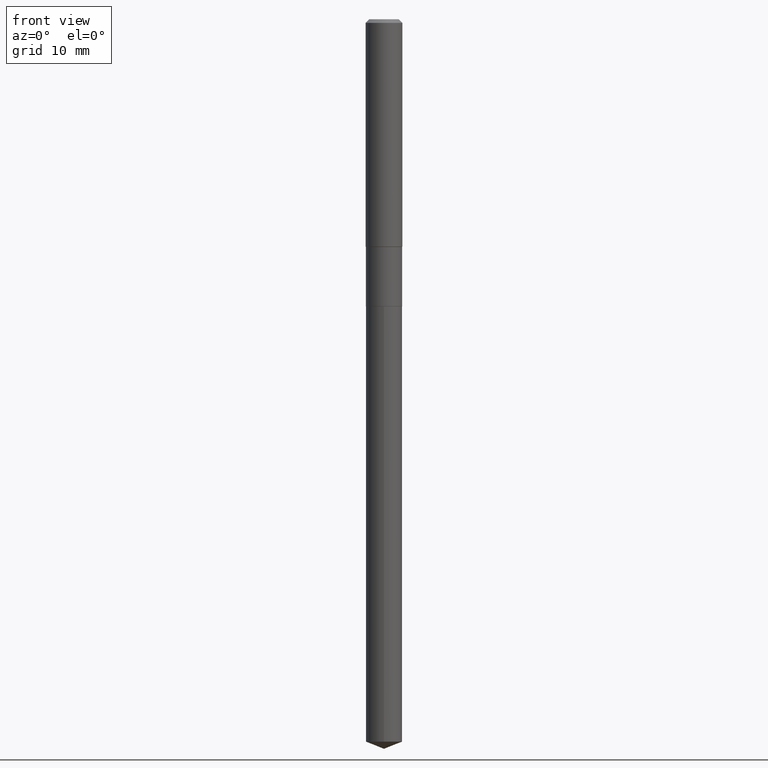
[diagram: clean part render]
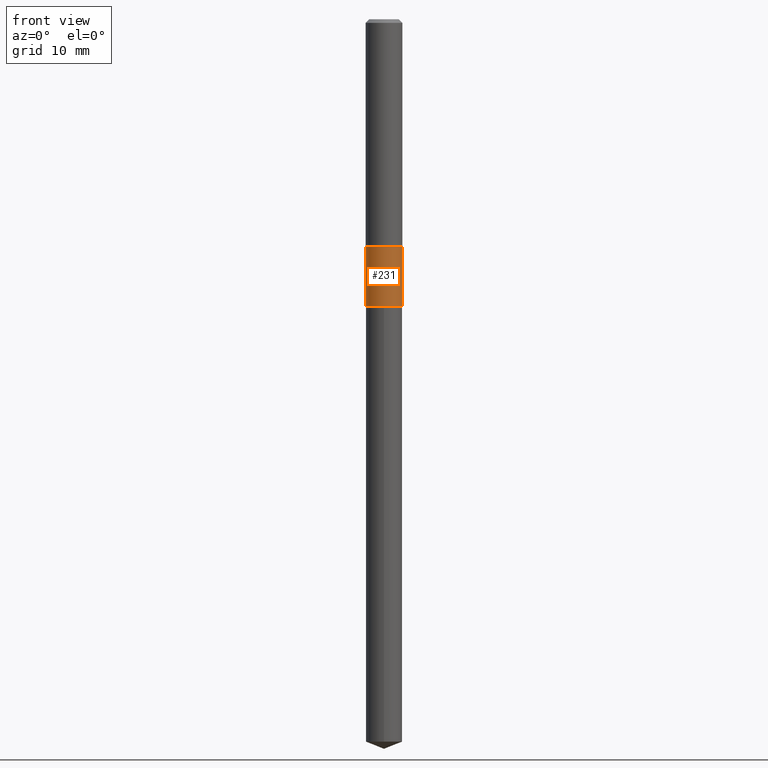
[diagram: same view with one face highlighted and labeled with its STEP entity id]
A machine part, front view. The second image highlights one B-rep face of the part: STEP entity #231.
In plain terms, the highlighted cylindrical surface (edge-blend (fillet) strip) has radius 2.9502 mm, axis along (-0, 0, 1).
Its self-contained STEP definition (entity closure, byte-faithful):
#10 = VERTEX_POINT ( 'NONE', #484 ) ;
#30 = CIRCLE ( 'NONE', #79, 0.1161500000000000032 ) ;
#31 = VECTOR ( 'NONE', #264, 39.37007874015748143 ) ;
#37 = EDGE_LOOP ( 'NONE', ( #224, #237, #421, #240 ) ) ;
#55 = CARTESIAN_POINT ( 'NONE',  ( 4.509444478605390880E-29, -6.438291588826759175E-15, -1.843999999999999417 ) ) ;
#79 = AXIS2_PLACEMENT_3D ( 'NONE', #55, #271, #93 ) ;
#93 = DIRECTION ( 'NONE',  ( 1.000000000000000000, -6.982962677686265922E-15, 0.000000000000000000 ) ) ;
#116 = LINE ( 'NONE', #152, #31 ) ;
#134 = DIRECTION ( 'NONE',  ( -2.445468806185136877E-29, 3.491481338843145188E-15, 1.000000000000000000 ) ) ;
#141 = DIRECTION ( 'NONE',  ( 1.000000000000000000, -6.982962677686269866E-15, 0.000000000000000000 ) ) ;
#146 = EDGE_CURVE ( 'NONE', #350, #10, #30, .T. ) ;
#152 = CARTESIAN_POINT ( 'NONE',  ( 0.1161499999999999755, -8.110711150132597459E-16, 5.663679325086977697E-30 ) ) ;
#164 = VERTEX_POINT ( 'NONE', #238 ) ;
#176 = CYLINDRICAL_SURFACE ( 'NONE', #328, 0.1161499999999999755 ) ;
#193 = EDGE_CURVE ( 'NONE', #350, #164, #309, .T. ) ;
#224 = ORIENTED_EDGE ( 'NONE', *, *, #193, .F. ) ;
#231 = ADVANCED_FACE ( 'NONE', ( #253 ), #176, .T. ) ;
#233 = VERTEX_POINT ( 'NONE', #323 ) ;
#237 = ORIENTED_EDGE ( 'NONE', *, *, #146, .T. ) ;
#238 = CARTESIAN_POINT ( 'NONE',  ( -0.1161499999999999477, -4.944726672986823807E-15, -1.461199999999999166 ) ) ;
#240 = ORIENTED_EDGE ( 'NONE', *, *, #316, .F. ) ;
#253 = FACE_OUTER_BOUND ( 'NONE', #37, .T. ) ;
#254 = DIRECTION ( 'NONE',  ( -2.445468806185136597E-29, 3.491481338843145583E-15, 1.000000000000000000 ) ) ;
#264 = DIRECTION ( 'NONE',  ( -2.445468806185136877E-29, 3.491481338843145188E-15, 1.000000000000000000 ) ) ;
#271 = DIRECTION ( 'NONE',  ( -2.445468806185136597E-29, 3.491481338843145583E-15, 1.000000000000000000 ) ) ;
#290 = CARTESIAN_POINT ( 'NONE',  ( 0.000000000000000000, 0.000000000000000000, 0.000000000000000000 ) ) ;
#291 = CARTESIAN_POINT ( 'NONE',  ( -0.1161500000000000032, -4.944726672986823807E-15, -1.843999999999999417 ) ) ;
#309 = LINE ( 'NONE', #490, #381 ) ;
#316 = EDGE_CURVE ( 'NONE', #164, #233, #451, .T. ) ;
#323 = CARTESIAN_POINT ( 'NONE',  ( 0.1161499999999999477, -5.912823647330860568E-15, -1.461199999999999166 ) ) ;
#326 = DIRECTION ( 'NONE',  ( 1.000000000000000000, -6.982962677686266711E-15, 4.876176775795935232E-29 ) ) ;
#328 = AXIS2_PLACEMENT_3D ( 'NONE', #290, #254, #326 ) ;
#350 = VERTEX_POINT ( 'NONE', #291 ) ;
#381 = VECTOR ( 'NONE', #134, 39.37007874015748143 ) ;
#419 = AXIS2_PLACEMENT_3D ( 'NONE', #472, #433, #141 ) ;
#421 = ORIENTED_EDGE ( 'NONE', *, *, #432, .T. ) ;
#432 = EDGE_CURVE ( 'NONE', #10, #233, #116, .T. ) ;
#433 = DIRECTION ( 'NONE',  ( -2.445468806185136597E-29, 3.491481338843145583E-15, 1.000000000000000000 ) ) ;
#451 = CIRCLE ( 'NONE', #419, 0.1161499999999999477 ) ;
#472 = CARTESIAN_POINT ( 'NONE',  ( 3.573319019597719083E-29, -5.101752532317600822E-15, -1.461199999999999166 ) ) ;
#484 = CARTESIAN_POINT ( 'NONE',  ( 0.1161500000000000032, -7.249362703840018921E-15, -1.843999999999999417 ) ) ;
#490 = CARTESIAN_POINT ( 'NONE',  ( -0.1161499999999999755, 8.252953875853561917E-16, -5.713343107331072131E-30 ) ) ;